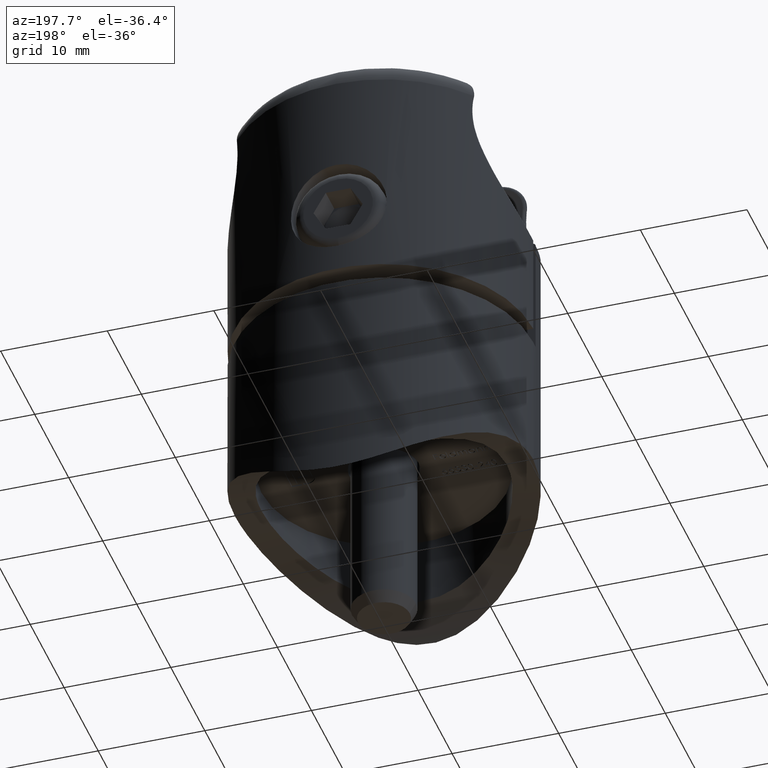
[diagram: clean part render]
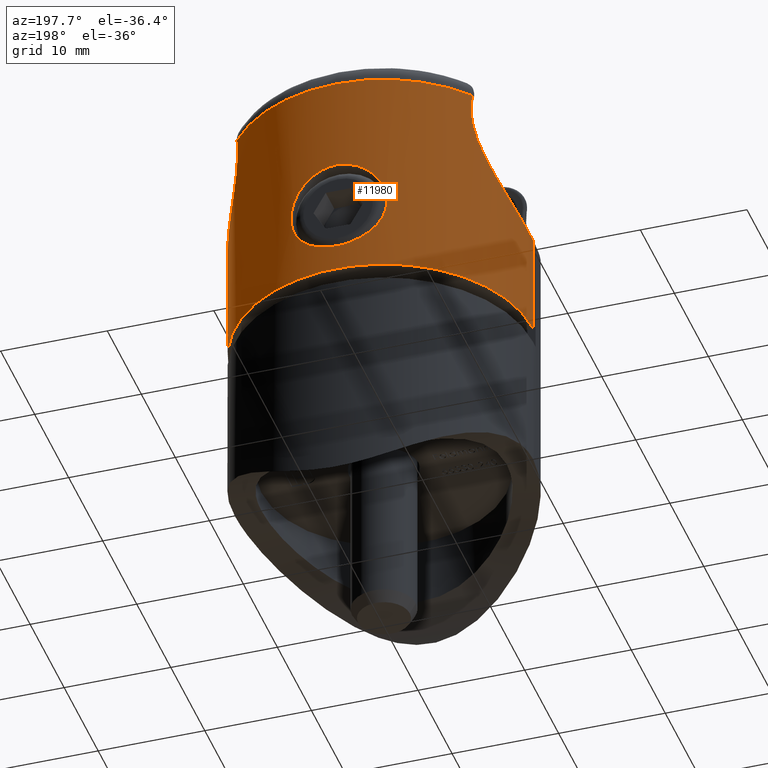
[diagram: same view with one face highlighted and labeled with its STEP entity id]
A machine part, auxiliary view. The second image highlights one B-rep face of the part: STEP entity #11980.
In plain terms, the highlighted cylindrical surface (partial cylindrical patch) has radius 14 mm, axis along (-0, -0, -1).
Its self-contained STEP definition (entity closure, byte-faithful):
#13 = ORIENTED_EDGE ( 'NONE', *, *, #1824, .T. ) ;
#134 = CIRCLE ( 'NONE', #20382, 13.99999999999999822 ) ;
#146 = ORIENTED_EDGE ( 'NONE', *, *, #7013, .T. ) ;
#252 = CARTESIAN_POINT ( 'NONE',  ( 11.49919966993867071, 8.736819740574222948, 3.863717732984442321 ) ) ;
#338 = CARTESIAN_POINT ( 'NONE',  ( 2.973448236359919061, 14.43224956639930134, -1.109637652608591818 ) ) ;
#411 = CARTESIAN_POINT ( 'NONE',  ( 0.1475149700064867786, 14.75000000000000178, -1.232150593939255823E-15 ) ) ;
#879 = LINE ( 'NONE', #8695, #17422 ) ;
#1186 = EDGE_CURVE ( 'NONE', #17912, #14226, #134, .T. ) ;
#1196 = CARTESIAN_POINT ( 'NONE',  ( -13.94177541297729839, 2.066853481427123995, -1.579632474699635081 ) ) ;
#1262 = CARTESIAN_POINT ( 'NONE',  ( -12.09179517568927942, 7.820629676173588507, 2.202175456430515599 ) ) ;
#1291 = CARTESIAN_POINT ( 'NONE',  ( -1.456875499945158747, 14.67667622486514389, -0.2322236159013107981 ) ) ;
#1330 = CARTESIAN_POINT ( 'NONE',  ( -10.95184630113998381, 9.472173544664839184, 8.345073562816217816 ) ) ;
#1354 = CARTESIAN_POINT ( 'NONE',  ( -2.976665335498160481, 14.43153080715522840, -7.887405977084323005 ) ) ;
#1674 = CARTESIAN_POINT ( 'NONE',  ( 0.5935512062437290348, 14.74040870270586900, -8.970407448303904019 ) ) ;
#1740 = CARTESIAN_POINT ( 'NONE',  ( 2.748094933067863899, 14.47987280994610870, -8.075488804181340186 ) ) ;
#1750 = CARTESIAN_POINT ( 'NONE',  ( -1.171997242582932586, 14.70386578732299832, -8.854696731855984382 ) ) ;
#1824 = EDGE_CURVE ( 'NONE', #18825, #11782, #16103, .T. ) ;
#1828 = CARTESIAN_POINT ( 'NONE',  ( 0.000000000000000000, 0.7500000000000000000, 11.50000000000000000 ) ) ;
#1860 = CARTESIAN_POINT ( 'NONE',  ( 10.96245788098992691, 9.457755145145290143, 6.696956844543539233 ) ) ;
#1933 = CARTESIAN_POINT ( 'NONE',  ( 13.40685480882431868, 4.792689900729951269, -0.5276442389570378255 ) ) ;
#1977 = VERTEX_POINT ( 'NONE', #5194 ) ;
#2004 = CARTESIAN_POINT ( 'NONE',  ( 13.31953504794908305, 5.070760946304526229, -0.3617228399560332708 ) ) ;
#2016 = CARTESIAN_POINT ( 'NONE',  ( 0.7390198705755446351, 14.73124153724954688, -0.05861718487369809577 ) ) ;
#2083 = CARTESIAN_POINT ( 'NONE',  ( 0.5904481422670850854, 14.73832368125724201, -0.03643743590224578915 ) ) ;
#2421 = EDGE_LOOP ( 'NONE', ( #16494, #13 ) ) ;
#2579 = CARTESIAN_POINT ( 'NONE',  ( -14.00000000000000000, 1.083599464081538288, -1.743296017943295695 ) ) ;
#2790 = CARTESIAN_POINT ( 'NONE',  ( -10.92139153126184681, 9.509288604790473443, 7.687460160021493571 ) ) ;
#2883 = CARTESIAN_POINT ( 'NONE',  ( -4.355032703449511544, 14.05554093830765972, -5.671066411558383535 ) ) ;
#3054 = CARTESIAN_POINT ( 'NONE',  ( -11.07365542976289063, 9.316135008613102286, 5.712628747241264904 ) ) ;
#3204 = ORIENTED_EDGE ( 'NONE', *, *, #19534, .T. ) ;
#3216 = CARTESIAN_POINT ( 'NONE',  ( -2.260085609714095334, 14.56858281002792843, -8.402286087218072907 ) ) ;
#3338 = CARTESIAN_POINT ( 'NONE',  ( 3.389315178680608387, 14.33518645419612625, -7.474471998608430923 ) ) ;
#3417 = CARTESIAN_POINT ( 'NONE',  ( 0.000000000000000000, 0.7500000000000000000, 9.000000000000001776 ) ) ;
#3464 = CARTESIAN_POINT ( 'NONE',  ( 11.87998000149467970, 8.165420934305426925, 2.726724364882758600 ) ) ;
#3476 = CARTESIAN_POINT ( 'NONE',  ( 1.175624501517461784, 14.70360054607772149, -0.1461472521627772414 ) ) ;
#3550 = CARTESIAN_POINT ( 'NONE',  ( 2.262070680118924759, 14.56825234374778333, -0.5988862748501709854 ) ) ;
#3673 = CARTESIAN_POINT ( 'NONE',  ( 10.99093315786289615, 9.422018328064922343, 6.363590011588537543 ) ) ;
#3907 = EDGE_CURVE ( 'NONE', #1977, #11324, #13389, .T. ) ;
#3909 = ORIENTED_EDGE ( 'NONE', *, *, #3907, .T. ) ;
#4469 = CARTESIAN_POINT ( 'NONE',  ( -10.99093315786289971, 9.422018328064933002, 6.363590011588580175 ) ) ;
#4500 = CARTESIAN_POINT ( 'NONE',  ( -3.902960142587594383, 14.19603860008391294, -6.759205520575960691 ) ) ;
#4540 = CARTESIAN_POINT ( 'NONE',  ( -13.77301542770580589, 3.340828731928702666, -1.224359410654590086 ) ) ;
#4568 = ORIENTED_EDGE ( 'NONE', *, *, #1186, .T. ) ;
#4571 = CARTESIAN_POINT ( 'NONE',  ( -2.749151830223500514, 14.47964738466082402, -0.9253910769960421723 ) ) ;
#4690 = CARTESIAN_POINT ( 'NONE',  ( 4.346950231260104047, 14.05812091289323540, -5.672976429012447142 ) ) ;
#4762 = CARTESIAN_POINT ( 'NONE',  ( -0.2993906604846255370, 14.75000000000000178, -8.999999999999998224 ) ) ;
#5042 = DIRECTION ( 'NONE',  ( -0.000000000000000000, -0.000000000000000000, -1.000000000000000000 ) ) ;
#5074 = CARTESIAN_POINT ( 'NONE',  ( 13.77301542770580234, 3.340828731928696893, -1.224359410654588753 ) ) ;
#5194 = CARTESIAN_POINT ( 'NONE',  ( -11.03719900984944680, 9.362795017703506417, 9.000000000000001776 ) ) ;
#5220 = CARTESIAN_POINT ( 'NONE',  ( 11.12766978062316348, 9.246264697061098659, 5.394106020098845100 ) ) ;
#5345 = CARTESIAN_POINT ( 'NONE',  ( 13.99999999999999822, 0.7500000000000056621, 11.50000000000000000 ) ) ;
#5355 = CYLINDRICAL_SURFACE ( 'NONE', #20713, 13.99999999999999822 ) ;
#6146 = CARTESIAN_POINT ( 'NONE',  ( -13.13539507670992101, 5.601843487520914877, -0.007480301928088051687 ) ) ;
#6187 = CARTESIAN_POINT ( 'NONE',  ( -3.577071089725291309, 14.28635455234231699, -1.754172634063741132 ) ) ;
#6223 = CARTESIAN_POINT ( 'NONE',  ( -11.03719900984944680, 9.362795017703506417, 9.000000000000001776 ) ) ;
#6253 = CARTESIAN_POINT ( 'NONE',  ( -0.2949527338248421060, 14.75000000000000000, -1.116812940954794603E-15 ) ) ;
#6286 = CARTESIAN_POINT ( 'NONE',  ( -12.52369832331562094, 7.023937750328002494, 1.221693726711682748 ) ) ;
#6370 = FACE_BOUND ( 'NONE', #2421, .T. ) ;
#6651 = CARTESIAN_POINT ( 'NONE',  ( 1.456463282188255048, 14.67671283907336921, -0.2321087894107378424 ) ) ;
#6730 = CARTESIAN_POINT ( 'NONE',  ( 4.470843126759643127, 14.01707644784714901, -5.091252459488425863 ) ) ;
#6791 = CARTESIAN_POINT ( 'NONE',  ( 4.499857042480452485, 14.00712210926128698, -4.797914670767186252 ) ) ;
#7013 = EDGE_CURVE ( 'NONE', #11981, #1977, #9502, .T. ) ;
#7038 = DIRECTION ( 'NONE',  ( -0.000000000000000000, -0.000000000000000000, -1.000000000000000000 ) ) ;
#7511 = CARTESIAN_POINT ( 'NONE',  ( -13.98809394633210168, 1.413650891683504440, -1.699856279069844822 ) ) ;
#7531 = CARTESIAN_POINT ( 'NONE',  ( 0.2994690283348137028, 14.75000000000000178, -8.999999999999998224 ) ) ;
#7742 = CARTESIAN_POINT ( 'NONE',  ( -3.574448056416896335, 14.28707401920929776, -7.249623347079695357 ) ) ;
#7810 = CARTESIAN_POINT ( 'NONE',  ( -4.267466827286287234, 14.08426637030308903, -5.957680529277240566 ) ) ;
#7863 = CARTESIAN_POINT ( 'NONE',  ( 3.903724177083454538, 14.19581930595833619, -6.757942613847274238 ) ) ;
#7871 = CARTESIAN_POINT ( 'NONE',  ( -2.262955132977733541, 14.56810722055936225, -0.5993976357272121636 ) ) ;
#8124 = CARTESIAN_POINT ( 'NONE',  ( 1.458438940048729426, 14.67652636118166321, -8.767298481840382962 ) ) ;
#8197 = CARTESIAN_POINT ( 'NONE',  ( 4.041124537805488970, 14.15460816668956845, -2.498209412296823473 ) ) ;
#8224 = ORIENTED_EDGE ( 'NONE', *, *, #10591, .F. ) ;
#8250 = CARTESIAN_POINT ( 'NONE',  ( 13.64453835606453147, 3.939821788646327594, -0.9795079004057760663 ) ) ;
#8318 = CARTESIAN_POINT ( 'NONE',  ( 11.03719900984943969, 9.362795017703513523, 9.000000000000001776 ) ) ;
#8337 = CARTESIAN_POINT ( 'NONE',  ( 4.500141913742331745, 14.00702541216561592, -4.206419840590768899 ) ) ;
#8458 = CARTESIAN_POINT ( 'NONE',  ( 12.09179517568929185, 7.820629676173576073, 2.202175456430499167 ) ) ;
#8479 = CARTESIAN_POINT ( 'NONE',  ( 3.901351218737349580, 14.19648291578739396, -2.238417485157448983 ) ) ;
#8589 = CARTESIAN_POINT ( 'NONE',  ( 0.000000000000000000, 0.7500000000000000000, -11.50000000000000000 ) ) ;
#8695 = CARTESIAN_POINT ( 'NONE',  ( -14.00000000000000000, 0.7500000000000004441, 11.50000000000000000 ) ) ;
#9283 = CARTESIAN_POINT ( 'NONE',  ( -3.901484382585200361, 14.19644011477055656, -2.238711624556322999 ) ) ;
#9321 = CARTESIAN_POINT ( 'NONE',  ( -11.12766978062316170, 9.246264697061109317, 5.394106020098877963 ) ) ;
#9502 = B_SPLINE_CURVE_WITH_KNOTS ( 'NONE', 3,
 ( #12180, #2579, #7511, #1196, #10844, #4540, #15737, #15862, #20485, #6146, #12653, #18960, #6286, #1262, #18886, #10777, #10903, #19019, #14217, #9321, #3054, #4469, #15801, #2790, #1330, #6223 ),
 .UNSPECIFIED., .F., .F.,
 ( 4, 2, 2, 2, 2, 2, 2, 2, 2, 2, 2, 2, 4 ),
 ( 1.084202172485504434E-19, 0.0009984808742346095584, 0.001996961748469219117, 0.003993923496938439101, 0.004992404371173049527, 0.005990885245407661687, 0.007987846993876879936, 0.009984808742346100788, 0.01098328961658071208, 0.01198177049081532337, 0.01298025136504992773, 0.01397873223928453382, 0.01597569398775374946 ),
 .UNSPECIFIED. ) ;
#9788 = CARTESIAN_POINT ( 'NONE',  ( 12.73781489731829275, 6.582966138406940004, 0.7792169376169525430 ) ) ;
#9877 = DIRECTION ( 'NONE',  ( 1.000000000000000000, 0.000000000000000000, 0.000000000000000000 ) ) ;
#9940 = CARTESIAN_POINT ( 'NONE',  ( 4.268775405477839513, 14.08385781273078763, -3.045555217734903231 ) ) ;
#10064 = CARTESIAN_POINT ( 'NONE',  ( 13.03852695443380405, 5.855454969054140868, 0.1809173691091791880 ) ) ;
#10351 = LINE ( 'NONE', #5345, #20595 ) ;
#10411 = B_SPLINE_CURVE_WITH_KNOTS ( 'NONE', 3,
 ( #8318, #19560, #13134, #1860, #3673, #13070, #5220, #14834, #17970, #252, #16423, #3464, #8458, #19623, #9788, #10064, #17828, #2004, #1933, #8250, #5074, #14760, #19488, #13202, #17892, #16355 ),
 .UNSPECIFIED., .F., .F.,
 ( 4, 2, 2, 2, 2, 2, 2, 2, 2, 2, 2, 2, 4 ),
 ( 2.081668171172168513E-17, 0.001976237978532243561, 0.002964356967798355367, 0.003952475957064466305, 0.004940594946330577678, 0.005928713935596689917, 0.007904951914128906590, 0.009881189892661124130, 0.01086930888192723203, 0.01185742787119333994, 0.01383366584972555748, 0.01482178483899166538, 0.01580990382825777155 ),
 .UNSPECIFIED. ) ;
#10591 = EDGE_CURVE ( 'NONE', #11981, #14226, #879, .T. ) ;
#10618 = AXIS2_PLACEMENT_3D ( 'NONE', #3417, #11545, #9877 ) ;
#10777 = CARTESIAN_POINT ( 'NONE',  ( -11.59107649403260787, 8.603505193650597960, 3.571035583089961829 ) ) ;
#10844 = CARTESIAN_POINT ( 'NONE',  ( -13.90707894584536142, 2.391719241078769098, -1.502285832584382197 ) ) ;
#10903 = CARTESIAN_POINT ( 'NONE',  ( -11.49919966993866538, 8.736819740574231830, 3.863717732984470743 ) ) ;
#11057 = CARTESIAN_POINT ( 'NONE',  ( 4.260601923048112916, 14.08601626418314723, -5.955720189249907648 ) ) ;
#11324 = VERTEX_POINT ( 'NONE', #16640 ) ;
#11332 = CARTESIAN_POINT ( 'NONE',  ( 2.260375626322558062, 14.56854316367602564, -8.402159399346242452 ) ) ;
#11341 = CARTESIAN_POINT ( 'NONE',  ( -2.002720053864941008, 14.60871958461003217, -8.540518113494711017 ) ) ;
#11545 = DIRECTION ( 'NONE',  ( -0.000000000000000000, -0.000000000000000000, -1.000000000000000000 ) ) ;
#11684 = CARTESIAN_POINT ( 'NONE',  ( 1.998605934633875147, 14.60929976991693735, -0.4575063394194524569 ) ) ;
#11734 = DIRECTION ( 'NONE',  ( 1.000000000000000000, 0.000000000000000000, 0.000000000000000000 ) ) ;
#11782 = VERTEX_POINT ( 'NONE', #12772 ) ;
#11980 = ADVANCED_FACE ( 'NONE', ( #6370, #16114 ), #5355, .T. ) ;
#11981 = VERTEX_POINT ( 'NONE', #15143 ) ;
#12180 = CARTESIAN_POINT ( 'NONE',  ( -14.00000000000000000, 0.7500000000000004441, -1.769708733288220204 ) ) ;
#12493 = CARTESIAN_POINT ( 'NONE',  ( -4.470945545314482850, 14.01704094513650212, -5.090213791119434283 ) ) ;
#12558 = CARTESIAN_POINT ( 'NONE',  ( -2.746954136263795032, 14.48009325584132512, -8.076320265719456160 ) ) ;
#12653 = CARTESIAN_POINT ( 'NONE',  ( -13.03852695443379694, 5.855454969054151526, 0.1809173691091877922 ) ) ;
#12772 = CARTESIAN_POINT ( 'NONE',  ( -1.141927492559368151E-16, 14.75000000000000000, -9.000000000000000000 ) ) ;
#12945 = CARTESIAN_POINT ( 'NONE',  ( 2.977320940732284260, 14.43138547046993381, -7.886812818390974478 ) ) ;
#12990 = CARTESIAN_POINT ( 'NONE',  ( 5.509809479191268856E-16, 14.75000000000000000, -1.078574760996316751E-15 ) ) ;
#13019 = CARTESIAN_POINT ( 'NONE',  ( 3.388209529547922649, 14.33548430478009905, -1.524098885244683510 ) ) ;
#13041 = VERTEX_POINT ( 'NONE', #19918 ) ;
#13070 = CARTESIAN_POINT ( 'NONE',  ( 11.07365542976289596, 9.316135008613098734, 5.712628747241231153 ) ) ;
#13134 = CARTESIAN_POINT ( 'NONE',  ( 10.92139153126184503, 9.509288604790476995, 7.687460160021452715 ) ) ;
#13202 = CARTESIAN_POINT ( 'NONE',  ( 13.98809394633210879, 1.413650891683506661, -1.699856279069845710 ) ) ;
#13225 = CARTESIAN_POINT ( 'NONE',  ( 3.576294364140053528, 14.28656391989952645, -1.753108042822751234 ) ) ;
#13389 = CIRCLE ( 'NONE', #10618, 13.99999999999999822 ) ;
#13502 = EDGE_CURVE ( 'NONE', #13041, #17912, #10351, .T. ) ;
#14111 = CARTESIAN_POINT ( 'NONE',  ( -0.5915664521990230407, 14.74055483441522085, -0.02912747543265940819 ) ) ;
#14217 = CARTESIAN_POINT ( 'NONE',  ( -11.25678573157184914, 9.074441335164847189, 4.769678829348951155 ) ) ;
#14226 = VERTEX_POINT ( 'NONE', #15752 ) ;
#14252 = CARTESIAN_POINT ( 'NONE',  ( -4.268753702044589815, 14.08386489531733510, -3.045486891916730166 ) ) ;
#14384 = CARTESIAN_POINT ( 'NONE',  ( -1.459214120426250316, 14.67643853574038992, -8.767009302823259631 ) ) ;
#14418 = EDGE_LOOP ( 'NONE', ( #8224, #146, #3909, #3204, #15494, #4568 ) ) ;
#14588 = CARTESIAN_POINT ( 'NONE',  ( -0.5936750977871072532, 14.74040735023512028, -8.970403901363573240 ) ) ;
#14760 = CARTESIAN_POINT ( 'NONE',  ( 13.90707894584535786, 2.391719241078765101, -1.502285832584380199 ) ) ;
#14826 = DIRECTION ( 'NONE',  ( 0.000000000000000000, 0.000000000000000000, 1.000000000000000000 ) ) ;
#14834 = CARTESIAN_POINT ( 'NONE',  ( 11.25678573157185269, 9.074441335164838307, 4.769678829348920956 ) ) ;
#14853 = CARTESIAN_POINT ( 'NONE',  ( 4.383602676168381507, 14.04605078629621318, -5.527634181616043030 ) ) ;
#15112 = B_SPLINE_CURVE_WITH_KNOTS ( 'NONE', 3,
 ( #15688, #7531, #1674, #16096, #8124, #19302, #11332, #1740, #12945, #3338, #17446, #7863, #19041, #20643, #11057, #4690, #14853, #6730, #6791, #8337, #16298, #19506, #9940, #8197, #8479, #13225, #13019, #338, #18059, #3550, #11684, #6651, #3476, #2016, #2083, #17988, #411, #19433 ),
 .UNSPECIFIED., .F., .F.,
 ( 4, 2, 2, 2, 2, 2, 2, 2, 2, 2, 2, 2, 2, 2, 2, 2, 2, 2, 4 ),
 ( 3.891554023788921506E-19, 0.0008852315236309432882, 0.001770463047261886143, 0.002655694570892828781, 0.003540926094523771852, 0.004426157618154714056, 0.005311389141785656694, 0.005754004903601129747, 0.006196620665416601066, 0.007081852189047546306, 0.007967083712678488944, 0.008852315236309435051, 0.009737546759940379423, 0.01062277828357132206, 0.01150800980720226817, 0.01239324133083321254, 0.01327847285446415691, 0.01372108861627962736, 0.01416370437809510129 ),
 .UNSPECIFIED. ) ;
#15143 = CARTESIAN_POINT ( 'NONE',  ( -14.00000000000000000, 0.7500000000000004441, -1.769708733288220204 ) ) ;
#15494 = ORIENTED_EDGE ( 'NONE', *, *, #13502, .T. ) ;
#15688 = CARTESIAN_POINT ( 'NONE',  ( -1.141927492559368151E-16, 14.75000000000000000, -9.000000000000000000 ) ) ;
#15699 = CARTESIAN_POINT ( 'NONE',  ( -4.042027844455808427, 14.15432555784992275, -6.499529082575891792 ) ) ;
#15737 = CARTESIAN_POINT ( 'NONE',  ( -13.64453835606452792, 3.939821788646332035, -0.9795079004057751781 ) ) ;
#15752 = CARTESIAN_POINT ( 'NONE',  ( -14.00000000000000000, 0.7500000000000004441, -11.50000000000000000 ) ) ;
#15801 = CARTESIAN_POINT ( 'NONE',  ( -10.96245788098992868, 9.457755145145297249, 6.696956844543581866 ) ) ;
#15862 = CARTESIAN_POINT ( 'NONE',  ( -13.40685480882431158, 4.792689900729959263, -0.5276442389570350500 ) ) ;
#16096 = CARTESIAN_POINT ( 'NONE',  ( 1.171497748779706471, 14.70390381677419533, -8.854817885157597601 ) ) ;
#16103 = B_SPLINE_CURVE_WITH_KNOTS ( 'NONE', 3,
 ( #17184, #6253, #14111, #17456, #1291, #18983, #7871, #4571, #17255, #18854, #6187, #9283, #17383, #14252, #17318, #19051, #20515, #20448, #12493, #2883, #7810, #15699, #4500, #7742, #18916, #1354, #12558, #3216, #11341, #14384, #1750, #14588, #4762, #16169 ),
 .UNSPECIFIED., .F., .F.,
 ( 4, 2, 2, 2, 2, 2, 2, 2, 2, 2, 2, 2, 2, 2, 2, 2, 4 ),
 ( 0.01416370437809510129, 0.01504870424607934395, 0.01593370411406358836, 0.01681870398204782929, 0.01770370385003207370, 0.01858870371801631810, 0.01947370358600056250, 0.02035870345398480344, 0.02124370332196904784, 0.02212870318995328878, 0.02301370305793753318, 0.02389870292592177758, 0.02478370279390602199, 0.02566870266189026292, 0.02655370252987450386, 0.02743870239785874826, 0.02832370226584299266 ),
 .UNSPECIFIED. ) ;
#16114 = FACE_OUTER_BOUND ( 'NONE', #14418, .T. ) ;
#16169 = CARTESIAN_POINT ( 'NONE',  ( -1.141927492559368151E-16, 14.75000000000000000, -9.000000000000000000 ) ) ;
#16298 = CARTESIAN_POINT ( 'NONE',  ( 4.470374865535776010, 14.01723322323817733, -3.905962833947229651 ) ) ;
#16355 = CARTESIAN_POINT ( 'NONE',  ( 13.99999999999999822, 0.7500000000000056621, -1.769708733288220204 ) ) ;
#16423 = CARTESIAN_POINT ( 'NONE',  ( 11.59107649403261320, 8.603505193650587302, 3.571035583089937404 ) ) ;
#16494 = ORIENTED_EDGE ( 'NONE', *, *, #18558, .T. ) ;
#16640 = CARTESIAN_POINT ( 'NONE',  ( 11.03719900984943969, 9.362795017703513523, 9.000000000000001776 ) ) ;
#17133 = CARTESIAN_POINT ( 'NONE',  ( 13.99999999999999822, 0.7500000000000056621, -11.50000000000000000 ) ) ;
#17184 = CARTESIAN_POINT ( 'NONE',  ( 5.509809479191268856E-16, 14.75000000000000000, -1.078574760996316751E-15 ) ) ;
#17255 = CARTESIAN_POINT ( 'NONE',  ( -2.974489101176081451, 14.43202840828953448, -1.110501660220567288 ) ) ;
#17318 = CARTESIAN_POINT ( 'NONE',  ( -4.354295166242301285, 14.05578190456857079, -3.326648438074639724 ) ) ;
#17383 = CARTESIAN_POINT ( 'NONE',  ( -4.041073941320864726, 14.15462355368746650, -2.498103911017631518 ) ) ;
#17422 = VECTOR ( 'NONE', #20145, 1000.000000000000000 ) ;
#17446 = CARTESIAN_POINT ( 'NONE',  ( 3.574835413789547722, 14.28697421965278380, -7.249166976101938609 ) ) ;
#17456 = CARTESIAN_POINT ( 'NONE',  ( -1.175465842532841698, 14.70363234054792478, -0.1460440917095817415 ) ) ;
#17828 = CARTESIAN_POINT ( 'NONE',  ( 13.13539507670992279, 5.601843487520905995, -0.007480301928094216027 ) ) ;
#17892 = CARTESIAN_POINT ( 'NONE',  ( 14.00000000000000355, 1.083599464081542507, -1.743296017943296139 ) ) ;
#17912 = VERTEX_POINT ( 'NONE', #17133 ) ;
#17970 = CARTESIAN_POINT ( 'NONE',  ( 11.33188702965310490, 8.972482530521029176, 4.463775826752236497 ) ) ;
#17988 = CARTESIAN_POINT ( 'NONE',  ( 0.2951070776256052297, 14.74766909999889997, -0.007235641049394515509 ) ) ;
#18059 = CARTESIAN_POINT ( 'NONE',  ( 2.748306792445519786, 14.47981687321220612, -0.9247431095089277964 ) ) ;
#18558 = EDGE_CURVE ( 'NONE', #11782, #18825, #15112, .T. ) ;
#18825 = VERTEX_POINT ( 'NONE', #12990 ) ;
#18854 = CARTESIAN_POINT ( 'NONE',  ( -3.389876707720800297, 14.33507352518598310, -1.525942113065920314 ) ) ;
#18886 = CARTESIAN_POINT ( 'NONE',  ( -11.87998000149467259, 8.165420934305435807, 2.726724364882777696 ) ) ;
#18916 = CARTESIAN_POINT ( 'NONE',  ( -3.389000620471483316, 14.33526762861659876, -7.474849671426590625 ) ) ;
#18960 = CARTESIAN_POINT ( 'NONE',  ( -12.73781489731827854, 6.582966138406950662, 0.7792169376169644224 ) ) ;
#18983 = CARTESIAN_POINT ( 'NONE',  ( -1.999672079733517238, 14.60915251622907363, -0.4580063012734461037 ) ) ;
#19019 = CARTESIAN_POINT ( 'NONE',  ( -11.33188702965309957, 8.972482530521036281, 4.463775826752264919 ) ) ;
#19041 = CARTESIAN_POINT ( 'NONE',  ( 4.042047420623212872, 14.15431764162245010, -6.499394472968941017 ) ) ;
#19051 = CARTESIAN_POINT ( 'NONE',  ( -4.470038972179604109, 14.01734600716741319, -3.903852476454644727 ) ) ;
#19302 = CARTESIAN_POINT ( 'NONE',  ( 2.002615126272623503, 14.60874140340898464, -8.540595640619311979 ) ) ;
#19433 = CARTESIAN_POINT ( 'NONE',  ( 5.509809479191268856E-16, 14.75000000000000000, -1.078574760996316751E-15 ) ) ;
#19453 = DIRECTION ( 'NONE',  ( -1.000000000000000000, 0.000000000000000000, 0.000000000000000000 ) ) ;
#19488 = CARTESIAN_POINT ( 'NONE',  ( 13.94177541297730372, 2.066853481427123995, -1.579632474699636635 ) ) ;
#19506 = CARTESIAN_POINT ( 'NONE',  ( 4.354470809018536670, 14.05572481346334968, -3.327090981162023731 ) ) ;
#19534 = EDGE_CURVE ( 'NONE', #11324, #13041, #10411, .T. ) ;
#19560 = CARTESIAN_POINT ( 'NONE',  ( 10.95184630113995361, 9.472173544664842737, 8.345073562816200052 ) ) ;
#19623 = CARTESIAN_POINT ( 'NONE',  ( 12.52369832331562627, 7.023937750327991836, 1.221693726711671202 ) ) ;
#19918 = CARTESIAN_POINT ( 'NONE',  ( 13.99999999999999822, 0.7500000000000056621, -1.769708733288220204 ) ) ;
#20145 = DIRECTION ( 'NONE',  ( -0.000000000000000000, -0.000000000000000000, -1.000000000000000000 ) ) ;
#20382 = AXIS2_PLACEMENT_3D ( 'NONE', #8589, #14826, #11734 ) ;
#20448 = CARTESIAN_POINT ( 'NONE',  ( -4.499986711304293507, 14.00707809429670725, -4.796744932292265062 ) ) ;
#20485 = CARTESIAN_POINT ( 'NONE',  ( -13.31953504794907595, 5.070760946304531558, -0.3617228399560287189 ) ) ;
#20515 = CARTESIAN_POINT ( 'NONE',  ( -4.500013279665331822, 14.00706907589427885, -4.203658238528485747 ) ) ;
#20595 = VECTOR ( 'NONE', #7038, 1000.000000000000000 ) ;
#20643 = CARTESIAN_POINT ( 'NONE',  ( 4.210799656708839933, 14.10187761882500901, -6.093925234550576775 ) ) ;
#20713 = AXIS2_PLACEMENT_3D ( 'NONE', #1828, #5042, #19453 ) ;